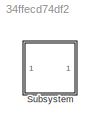
MODEL slx_34ffecd74df2
KIND model
CONFIG AbsTol = auto
CONFIG EnableMultiTasking = off
CONFIG FixedStep = auto
CONFIG MaxStep = auto
CONFIG MinStep = auto
CONFIG RelTol = 1e-3
CONFIG SampleTimeConstraint = Unconstrained
CONFIG SolverName = VariableStepAuto
CONFIG StartTime = 0.0
CONFIG StopTime = 10.0
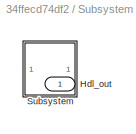
BLOCK [SubSystem] Subsystem
BLOCK [Outport] Subsystem/Hdl_out
  OutDataTypeStr = uint8
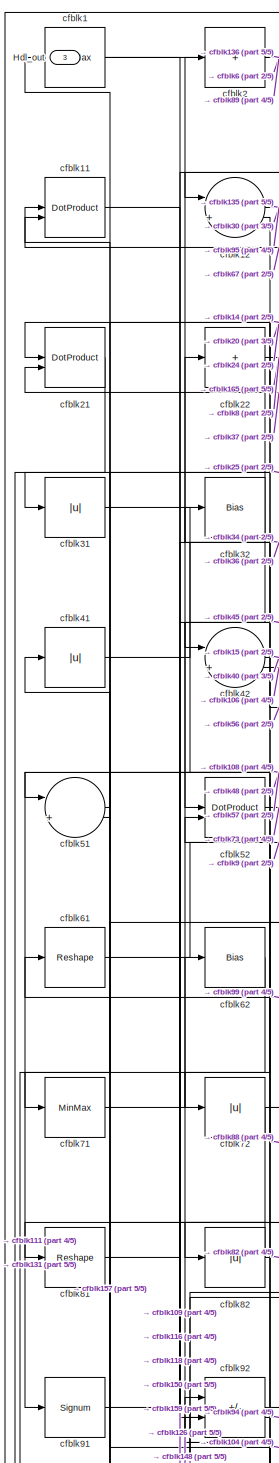
[diagram: Subsystem/Subsystem - part 1/5, top left region]
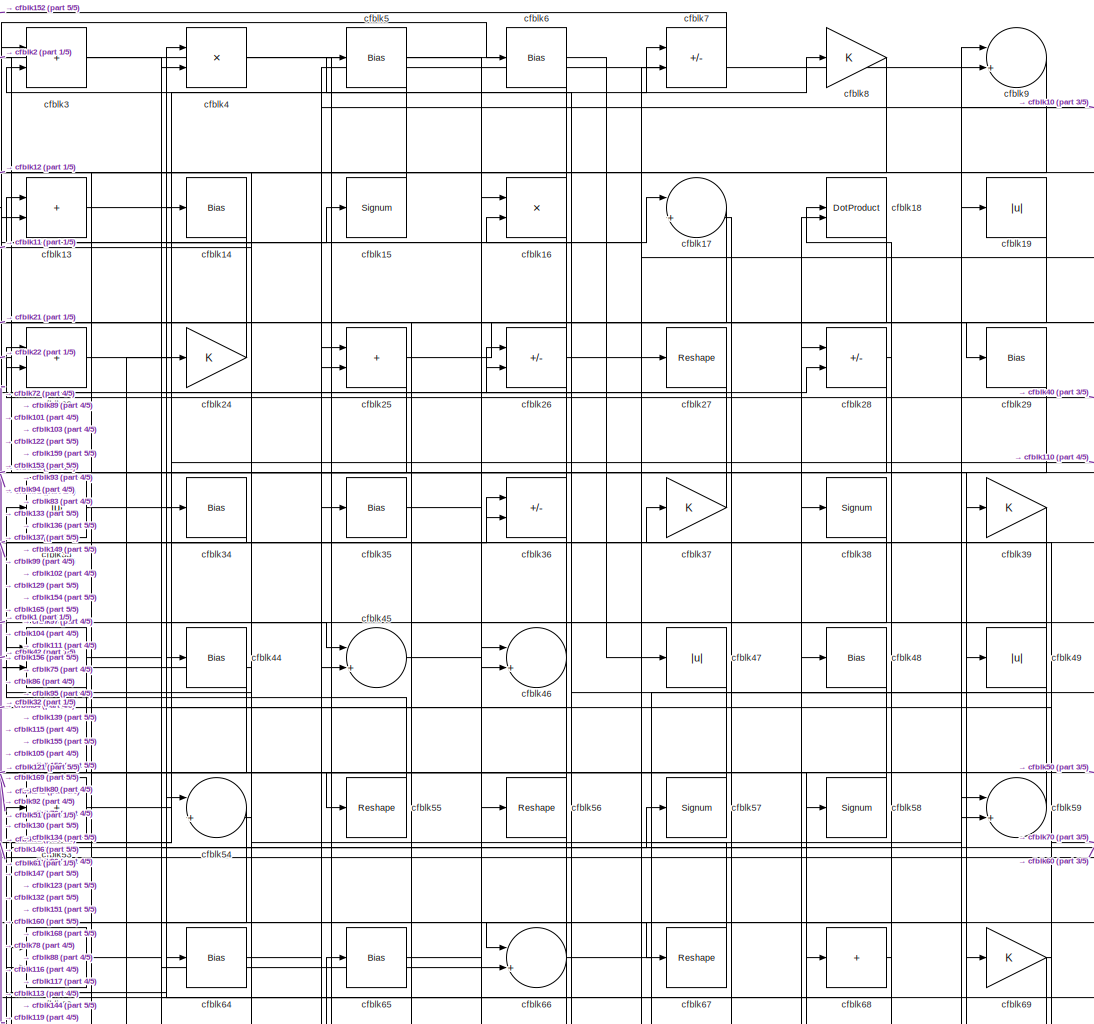
[diagram: Subsystem/Subsystem - part 2/5, top center region]
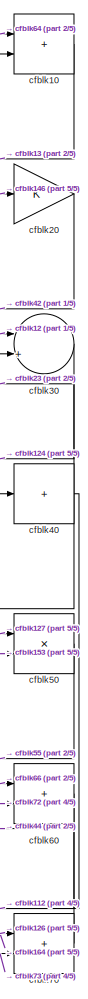
[diagram: Subsystem/Subsystem - part 3/5, top right region]
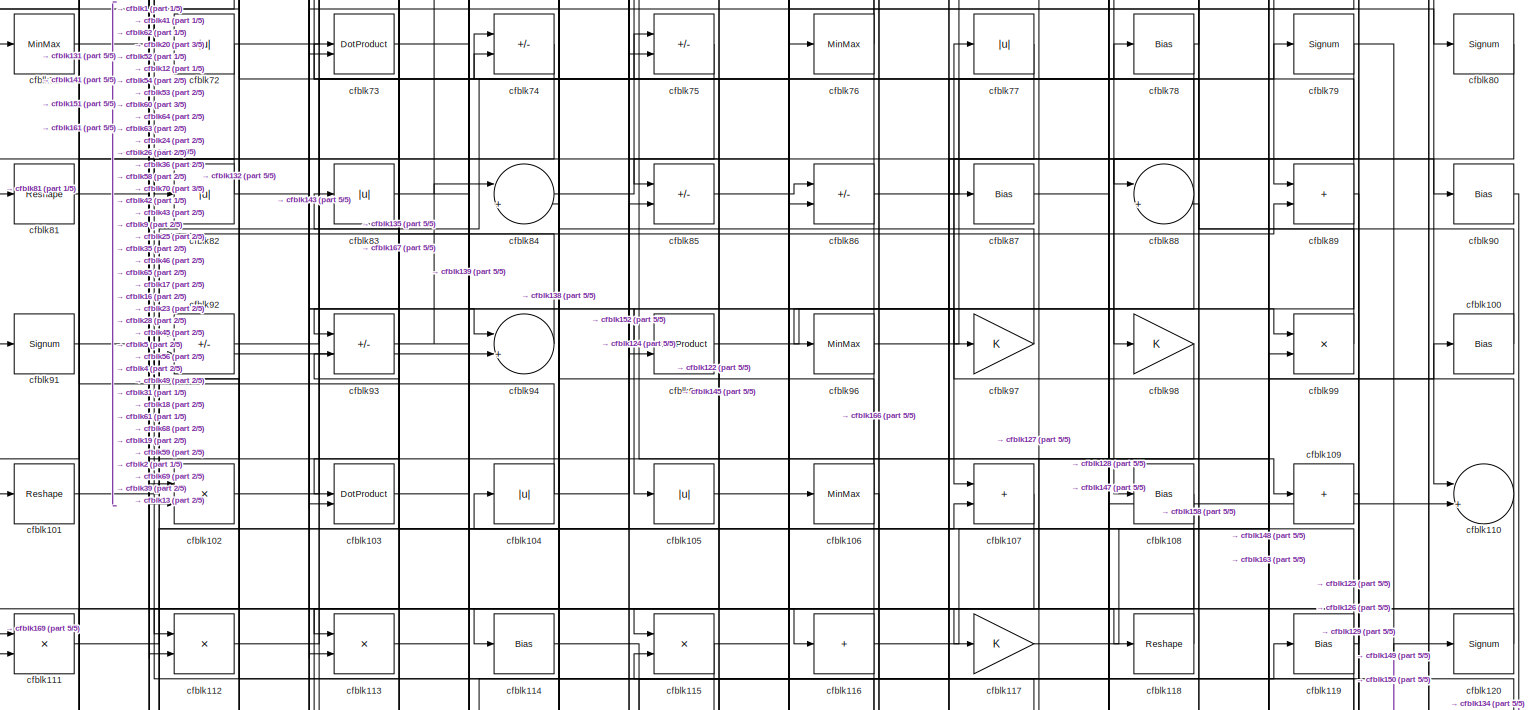
[diagram: Subsystem/Subsystem - part 4/5, full width, middle band]
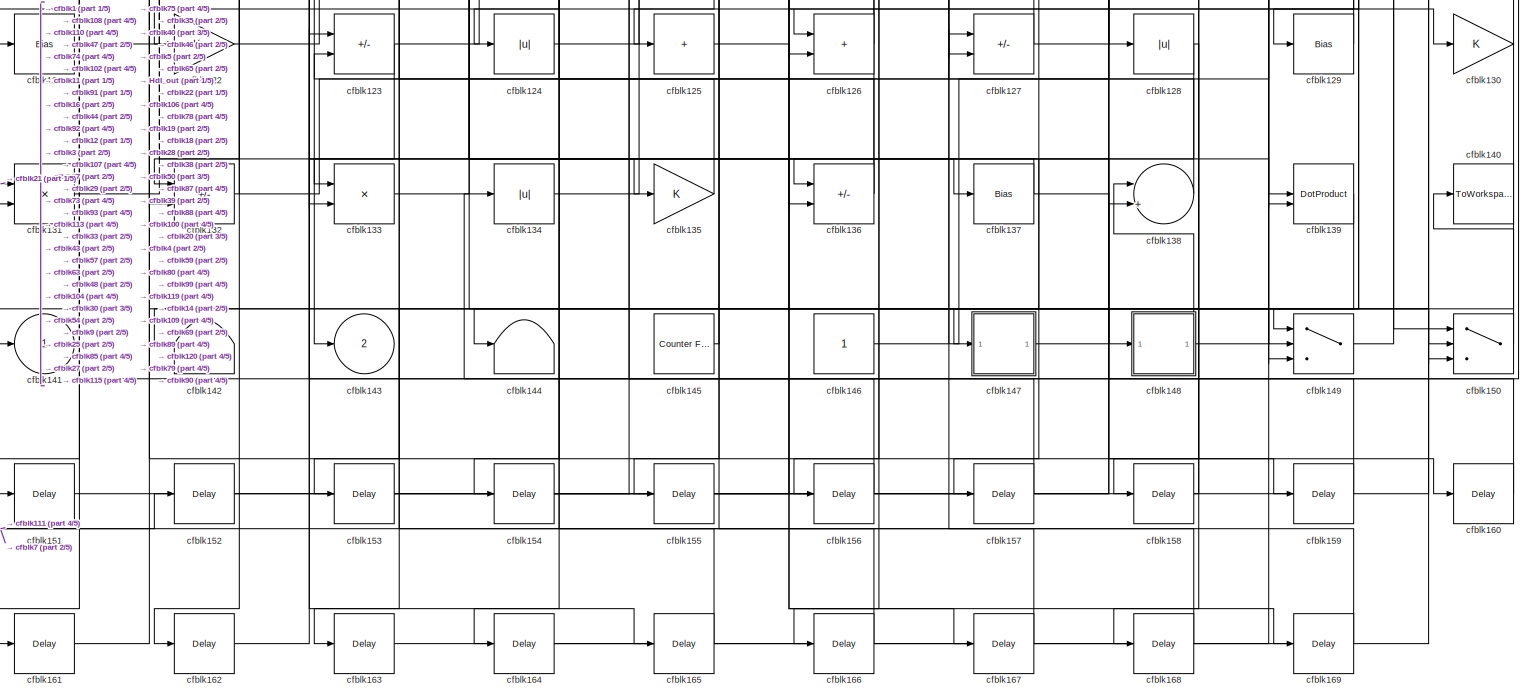
[diagram: Subsystem/Subsystem - part 5/5, full width, bottom band]
BLOCK [SubSystem] Subsystem/Subsystem
BLOCK [Outport] Subsystem/Subsystem/Hdl_out
  OutDataTypeStr = uint8
  Port = 3
BLOCK [MinMax] Subsystem/Subsystem/cfblk1
  OutDataTypeStr = uint8
BLOCK [Sum] Subsystem/Subsystem/cfblk10
  IconShape = rectangular
  OutDataTypeStr = uint8
BLOCK [Bias] Subsystem/Subsystem/cfblk100
  Bias = 0.0
  SaturateOnIntegerOverflow = off
BLOCK [Reshape] Subsystem/Subsystem/cfblk101
BLOCK [Product] Subsystem/Subsystem/cfblk102
  Inputs = */
  OutDataTypeStr = uint8
  RndMeth = Zero
  SaturateOnIntegerOverflow = on
BLOCK [DotProduct] Subsystem/Subsystem/cfblk103
  OutDataTypeStr = uint8
BLOCK [Abs] Subsystem/Subsystem/cfblk104
  OutDataTypeStr = uint8
  SaturateOnIntegerOverflow = off
BLOCK [Abs] Subsystem/Subsystem/cfblk105
  OutDataTypeStr = uint8
  SaturateOnIntegerOverflow = off
BLOCK [MinMax] Subsystem/Subsystem/cfblk106
  OutDataTypeStr = uint8
BLOCK [Sum] Subsystem/Subsystem/cfblk107
  IconShape = rectangular
  OutDataTypeStr = uint8
BLOCK [Bias] Subsystem/Subsystem/cfblk108
  Bias = 0.0
  SaturateOnIntegerOverflow = off
BLOCK [Sum] Subsystem/Subsystem/cfblk109
  IconShape = rectangular
  Inputs = +
  OutDataTypeStr = uint8
BLOCK [DotProduct] Subsystem/Subsystem/cfblk11
  OutDataTypeStr = uint8
BLOCK [Sum] Subsystem/Subsystem/cfblk110
  Inputs = |++
  OutDataTypeStr = uint8
BLOCK [Product] Subsystem/Subsystem/cfblk111
  Inputs = */
  OutDataTypeStr = uint8
  RndMeth = Zero
  SaturateOnIntegerOverflow = on
BLOCK [Product] Subsystem/Subsystem/cfblk112
  Inputs = */
  OutDataTypeStr = uint8
  RndMeth = Zero
  SaturateOnIntegerOverflow = on
BLOCK [Product] Subsystem/Subsystem/cfblk113
  Inputs = */
  OutDataTypeStr = uint8
  RndMeth = Zero
  SaturateOnIntegerOverflow = on
BLOCK [Bias] Subsystem/Subsystem/cfblk114
  Bias = 0.0
  SaturateOnIntegerOverflow = off
BLOCK [Product] Subsystem/Subsystem/cfblk115
  Inputs = */
  OutDataTypeStr = uint8
  RndMeth = Zero
  SaturateOnIntegerOverflow = on
BLOCK [Sum] Subsystem/Subsystem/cfblk116
  IconShape = rectangular
  Inputs = +
  OutDataTypeStr = uint8
BLOCK [Gain] Subsystem/Subsystem/cfblk117
  OutDataTypeStr = uint8
BLOCK [Reshape] Subsystem/Subsystem/cfblk118
BLOCK [Bias] Subsystem/Subsystem/cfblk119
  Bias = 0.0
  SaturateOnIntegerOverflow = off
BLOCK [Sum] Subsystem/Subsystem/cfblk12
  Inputs = |++
  OutDataTypeStr = uint8
BLOCK [Signum] Subsystem/Subsystem/cfblk120
BLOCK [Bias] Subsystem/Subsystem/cfblk121
  Bias = 0.0
  SaturateOnIntegerOverflow = off
BLOCK [Gain] Subsystem/Subsystem/cfblk122
  OutDataTypeStr = uint8
BLOCK [Sum] Subsystem/Subsystem/cfblk123
  IconShape = rectangular
  Inputs = +-
  OutDataTypeStr = uint8
BLOCK [Abs] Subsystem/Subsystem/cfblk124
  OutDataTypeStr = uint8
  SaturateOnIntegerOverflow = off
BLOCK [Sum] Subsystem/Subsystem/cfblk125
  IconShape = rectangular
  Inputs = +
  OutDataTypeStr = uint8
BLOCK [Sum] Subsystem/Subsystem/cfblk126
  IconShape = rectangular
  OutDataTypeStr = uint8
BLOCK [Sum] Subsystem/Subsystem/cfblk127
  IconShape = rectangular
  Inputs = +-
  OutDataTypeStr = uint8
BLOCK [Abs] Subsystem/Subsystem/cfblk128
  OutDataTypeStr = uint8
  SaturateOnIntegerOverflow = off
BLOCK [Bias] Subsystem/Subsystem/cfblk129
  Bias = 0.0
  SaturateOnIntegerOverflow = off
BLOCK [Sum] Subsystem/Subsystem/cfblk13
  IconShape = rectangular
  OutDataTypeStr = uint8
BLOCK [Gain] Subsystem/Subsystem/cfblk130
  OutDataTypeStr = uint8
BLOCK [Product] Subsystem/Subsystem/cfblk131
  Inputs = */
  OutDataTypeStr = uint8
  RndMeth = Zero
  SaturateOnIntegerOverflow = on
BLOCK [Sum] Subsystem/Subsystem/cfblk132
  IconShape = rectangular
  Inputs = +-
  OutDataTypeStr = uint8
BLOCK [Product] Subsystem/Subsystem/cfblk133
  Inputs = */
  OutDataTypeStr = uint8
  RndMeth = Zero
  SaturateOnIntegerOverflow = on
BLOCK [Abs] Subsystem/Subsystem/cfblk134
  OutDataTypeStr = uint8
  SaturateOnIntegerOverflow = off
BLOCK [Gain] Subsystem/Subsystem/cfblk135
  OutDataTypeStr = uint8
BLOCK [Sum] Subsystem/Subsystem/cfblk136
  IconShape = rectangular
  Inputs = +-
  OutDataTypeStr = uint8
BLOCK [Bias] Subsystem/Subsystem/cfblk137
  Bias = 0.0
  SaturateOnIntegerOverflow = off
BLOCK [Sum] Subsystem/Subsystem/cfblk138
  Inputs = |++
  OutDataTypeStr = uint8
BLOCK [DotProduct] Subsystem/Subsystem/cfblk139
  OutDataTypeStr = uint8
BLOCK [Bias] Subsystem/Subsystem/cfblk14
  Bias = 0.0
  SaturateOnIntegerOverflow = off
BLOCK [ToWorkspace] Subsystem/Subsystem/cfblk140
  MaxDataPoints = inf
  SampleTime = -1
  SaveFormat = Timeseries
  VariableName = simout
BLOCK [Outport] Subsystem/Subsystem/cfblk141
  OutDataTypeStr = uint8
  VectorParamsAs1DForOutWhenUnconnected = off
BLOCK [Terminator] Subsystem/Subsystem/cfblk142
BLOCK [Outport] Subsystem/Subsystem/cfblk143
  OutDataTypeStr = uint8
  Port = 2
  VectorParamsAs1DForOutWhenUnconnected = off
BLOCK [Terminator] Subsystem/Subsystem/cfblk144
BLOCK [Reference] Subsystem/Subsystem/cfblk145  REF=hdlsllib/Sources/Counter
Free-Running
  SourceBlock = hdlsllib/Sources/Counter\nFree-Running
  SourceType = Counter Free-Running
BLOCK [Constant] Subsystem/Subsystem/cfblk146
  OutDataTypeStr = uint8
  SampleTime = -1
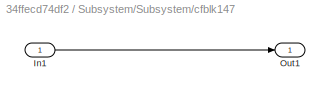
BLOCK [SubSystem] Subsystem/Subsystem/cfblk147
  LibrarySourceBlock = hdlsllib/Ports &\nSubsystems/Subsystem
BLOCK [Inport] Subsystem/Subsystem/cfblk147/In1
BLOCK [Outport] Subsystem/Subsystem/cfblk147/Out1
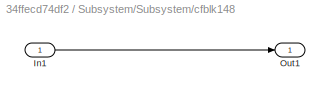
BLOCK [SubSystem] Subsystem/Subsystem/cfblk148
  LibrarySourceBlock = hdlsllib/Ports &\nSubsystems/Subsystem
BLOCK [Inport] Subsystem/Subsystem/cfblk148/In1
BLOCK [Outport] Subsystem/Subsystem/cfblk148/Out1
BLOCK [Switch] Subsystem/Subsystem/cfblk149
  InputSameDT = off
  OutDataTypeStr = uint8
  SaturateOnIntegerOverflow = off
BLOCK [Signum] Subsystem/Subsystem/cfblk15
BLOCK [Switch] Subsystem/Subsystem/cfblk150
  InputSameDT = off
  OutDataTypeStr = uint8
  SaturateOnIntegerOverflow = off
BLOCK [Delay] Subsystem/Subsystem/cfblk151
  InputPortMap = u0
  SampleTime = 1
BLOCK [Delay] Subsystem/Subsystem/cfblk152
  InputPortMap = u0
  SampleTime = 1
BLOCK [Delay] Subsystem/Subsystem/cfblk153
  InputPortMap = u0
  SampleTime = 1
BLOCK [Delay] Subsystem/Subsystem/cfblk154
  InputPortMap = u0
  SampleTime = 1
BLOCK [Delay] Subsystem/Subsystem/cfblk155
  InputPortMap = u0
  SampleTime = 1
BLOCK [Delay] Subsystem/Subsystem/cfblk156
  InputPortMap = u0
  SampleTime = 1
BLOCK [Delay] Subsystem/Subsystem/cfblk157
  InputPortMap = u0
  SampleTime = 1
BLOCK [Delay] Subsystem/Subsystem/cfblk158
  InputPortMap = u0
  SampleTime = 1
BLOCK [Delay] Subsystem/Subsystem/cfblk159
  InputPortMap = u0
  SampleTime = 1
BLOCK [Product] Subsystem/Subsystem/cfblk16
  Inputs = */
  OutDataTypeStr = uint8
  RndMeth = Zero
  SaturateOnIntegerOverflow = on
BLOCK [Delay] Subsystem/Subsystem/cfblk160
  InputPortMap = u0
  SampleTime = 1
BLOCK [Delay] Subsystem/Subsystem/cfblk161
  InputPortMap = u0
  SampleTime = 1
BLOCK [Delay] Subsystem/Subsystem/cfblk162
  InputPortMap = u0
  SampleTime = 1
BLOCK [Delay] Subsystem/Subsystem/cfblk163
  InputPortMap = u0
  SampleTime = 1
BLOCK [Delay] Subsystem/Subsystem/cfblk164
  InputPortMap = u0
  SampleTime = 1
BLOCK [Delay] Subsystem/Subsystem/cfblk165
  InputPortMap = u0
  SampleTime = 1
BLOCK [Delay] Subsystem/Subsystem/cfblk166
  InputPortMap = u0
  SampleTime = 1
BLOCK [Delay] Subsystem/Subsystem/cfblk167
  InputPortMap = u0
  SampleTime = 1
BLOCK [Delay] Subsystem/Subsystem/cfblk168
  InputPortMap = u0
  SampleTime = 1
BLOCK [Delay] Subsystem/Subsystem/cfblk169
  InputPortMap = u0
  SampleTime = 1
BLOCK [Sum] Subsystem/Subsystem/cfblk17
  Inputs = |++
  OutDataTypeStr = uint8
BLOCK [DotProduct] Subsystem/Subsystem/cfblk18
  OutDataTypeStr = uint8
BLOCK [Abs] Subsystem/Subsystem/cfblk19
  OutDataTypeStr = uint8
  SaturateOnIntegerOverflow = off
BLOCK [Sum] Subsystem/Subsystem/cfblk2
  IconShape = rectangular
  Inputs = +
  OutDataTypeStr = uint8
BLOCK [Gain] Subsystem/Subsystem/cfblk20
  OutDataTypeStr = uint8
BLOCK [DotProduct] Subsystem/Subsystem/cfblk21
  OutDataTypeStr = uint8
BLOCK [Sum] Subsystem/Subsystem/cfblk22
  IconShape = rectangular
  Inputs = +
  OutDataTypeStr = uint8
BLOCK [Sum] Subsystem/Subsystem/cfblk23
  IconShape = rectangular
  OutDataTypeStr = uint8
BLOCK [Gain] Subsystem/Subsystem/cfblk24
  OutDataTypeStr = uint8
BLOCK [Sum] Subsystem/Subsystem/cfblk25
  IconShape = rectangular
  OutDataTypeStr = uint8
BLOCK [Sum] Subsystem/Subsystem/cfblk26
  IconShape = rectangular
  Inputs = +-
  OutDataTypeStr = uint8
BLOCK [Reshape] Subsystem/Subsystem/cfblk27
BLOCK [Sum] Subsystem/Subsystem/cfblk28
  IconShape = rectangular
  Inputs = +-
  OutDataTypeStr = uint8
BLOCK [Bias] Subsystem/Subsystem/cfblk29
  Bias = 0.0
  SaturateOnIntegerOverflow = off
BLOCK [Sum] Subsystem/Subsystem/cfblk3
  IconShape = rectangular
  OutDataTypeStr = uint8
BLOCK [Sum] Subsystem/Subsystem/cfblk30
  Inputs = |++
  OutDataTypeStr = uint8
BLOCK [Abs] Subsystem/Subsystem/cfblk31
  OutDataTypeStr = uint8
  SaturateOnIntegerOverflow = off
BLOCK [Bias] Subsystem/Subsystem/cfblk32
  Bias = 0.0
  SaturateOnIntegerOverflow = off
BLOCK [Abs] Subsystem/Subsystem/cfblk33
  OutDataTypeStr = uint8
  SaturateOnIntegerOverflow = off
BLOCK [Bias] Subsystem/Subsystem/cfblk34
  Bias = 0.0
  SaturateOnIntegerOverflow = off
BLOCK [Bias] Subsystem/Subsystem/cfblk35
  Bias = 0.0
  SaturateOnIntegerOverflow = off
BLOCK [Sum] Subsystem/Subsystem/cfblk36
  IconShape = rectangular
  Inputs = +-
  OutDataTypeStr = uint8
BLOCK [Gain] Subsystem/Subsystem/cfblk37
  OutDataTypeStr = uint8
BLOCK [Signum] Subsystem/Subsystem/cfblk38
BLOCK [Gain] Subsystem/Subsystem/cfblk39
  OutDataTypeStr = uint8
BLOCK [Product] Subsystem/Subsystem/cfblk4
  Inputs = */
  OutDataTypeStr = uint8
  RndMeth = Zero
  SaturateOnIntegerOverflow = on
BLOCK [Sum] Subsystem/Subsystem/cfblk40
  IconShape = rectangular
  Inputs = +
  OutDataTypeStr = uint8
BLOCK [Abs] Subsystem/Subsystem/cfblk41
  OutDataTypeStr = uint8
  SaturateOnIntegerOverflow = off
BLOCK [Sum] Subsystem/Subsystem/cfblk42
  Inputs = |++
  OutDataTypeStr = uint8
BLOCK [Sum] Subsystem/Subsystem/cfblk43
  IconShape = rectangular
  OutDataTypeStr = uint8
BLOCK [Bias] Subsystem/Subsystem/cfblk44
  Bias = 0.0
  SaturateOnIntegerOverflow = off
BLOCK [Sum] Subsystem/Subsystem/cfblk45
  Inputs = |++
  OutDataTypeStr = uint8
BLOCK [Sum] Subsystem/Subsystem/cfblk46
  Inputs = |++
  OutDataTypeStr = uint8
BLOCK [Abs] Subsystem/Subsystem/cfblk47
  OutDataTypeStr = uint8
  SaturateOnIntegerOverflow = off
BLOCK [Bias] Subsystem/Subsystem/cfblk48
  Bias = 0.0
  SaturateOnIntegerOverflow = off
BLOCK [Abs] Subsystem/Subsystem/cfblk49
  OutDataTypeStr = uint8
  SaturateOnIntegerOverflow = off
BLOCK [Bias] Subsystem/Subsystem/cfblk5
  Bias = 0.0
  SaturateOnIntegerOverflow = off
BLOCK [Product] Subsystem/Subsystem/cfblk50
  Inputs = */
  OutDataTypeStr = uint8
  RndMeth = Zero
  SaturateOnIntegerOverflow = on
BLOCK [Sum] Subsystem/Subsystem/cfblk51
  Inputs = |++
  OutDataTypeStr = uint8
BLOCK [DotProduct] Subsystem/Subsystem/cfblk52
  OutDataTypeStr = uint8
BLOCK [Sum] Subsystem/Subsystem/cfblk53
  IconShape = rectangular
  Inputs = +
  OutDataTypeStr = uint8
BLOCK [Sum] Subsystem/Subsystem/cfblk54
  Inputs = |++
  OutDataTypeStr = uint8
BLOCK [Reshape] Subsystem/Subsystem/cfblk55
BLOCK [Reshape] Subsystem/Subsystem/cfblk56
BLOCK [Signum] Subsystem/Subsystem/cfblk57
BLOCK [Signum] Subsystem/Subsystem/cfblk58
BLOCK [Sum] Subsystem/Subsystem/cfblk59
  Inputs = |++
  OutDataTypeStr = uint8
BLOCK [Bias] Subsystem/Subsystem/cfblk6
  Bias = 0.0
  SaturateOnIntegerOverflow = off
BLOCK [Sum] Subsystem/Subsystem/cfblk60
  IconShape = rectangular
  OutDataTypeStr = uint8
BLOCK [Reshape] Subsystem/Subsystem/cfblk61
BLOCK [Bias] Subsystem/Subsystem/cfblk62
  Bias = 0.0
  SaturateOnIntegerOverflow = off
BLOCK [Product] Subsystem/Subsystem/cfblk63
  Inputs = */
  OutDataTypeStr = uint8
  RndMeth = Zero
  SaturateOnIntegerOverflow = on
BLOCK [Bias] Subsystem/Subsystem/cfblk64
  Bias = 0.0
  SaturateOnIntegerOverflow = off
BLOCK [Bias] Subsystem/Subsystem/cfblk65
  Bias = 0.0
  SaturateOnIntegerOverflow = off
BLOCK [Sum] Subsystem/Subsystem/cfblk66
  Inputs = |++
  OutDataTypeStr = uint8
BLOCK [Reshape] Subsystem/Subsystem/cfblk67
BLOCK [Sum] Subsystem/Subsystem/cfblk68
  IconShape = rectangular
  Inputs = +
  OutDataTypeStr = uint8
BLOCK [Gain] Subsystem/Subsystem/cfblk69
  OutDataTypeStr = uint8
BLOCK [Sum] Subsystem/Subsystem/cfblk7
  IconShape = rectangular
  Inputs = +-
  OutDataTypeStr = uint8
BLOCK [Sum] Subsystem/Subsystem/cfblk70
  IconShape = rectangular
  OutDataTypeStr = uint8
BLOCK [MinMax] Subsystem/Subsystem/cfblk71
  OutDataTypeStr = uint8
BLOCK [Abs] Subsystem/Subsystem/cfblk72
  OutDataTypeStr = uint8
  SaturateOnIntegerOverflow = off
BLOCK [DotProduct] Subsystem/Subsystem/cfblk73
  OutDataTypeStr = uint8
BLOCK [Sum] Subsystem/Subsystem/cfblk74
  IconShape = rectangular
  Inputs = +-
  OutDataTypeStr = uint8
BLOCK [Sum] Subsystem/Subsystem/cfblk75
  IconShape = rectangular
  Inputs = +-
  OutDataTypeStr = uint8
BLOCK [MinMax] Subsystem/Subsystem/cfblk76
  OutDataTypeStr = uint8
BLOCK [Abs] Subsystem/Subsystem/cfblk77
  OutDataTypeStr = uint8
  SaturateOnIntegerOverflow = off
BLOCK [Bias] Subsystem/Subsystem/cfblk78
  Bias = 0.0
  SaturateOnIntegerOverflow = off
BLOCK [Signum] Subsystem/Subsystem/cfblk79
BLOCK [Gain] Subsystem/Subsystem/cfblk8
  OutDataTypeStr = uint8
BLOCK [Signum] Subsystem/Subsystem/cfblk80
BLOCK [Reshape] Subsystem/Subsystem/cfblk81
BLOCK [Abs] Subsystem/Subsystem/cfblk82
  OutDataTypeStr = uint8
  SaturateOnIntegerOverflow = off
BLOCK [Abs] Subsystem/Subsystem/cfblk83
  OutDataTypeStr = uint8
  SaturateOnIntegerOverflow = off
BLOCK [Sum] Subsystem/Subsystem/cfblk84
  Inputs = |++
  OutDataTypeStr = uint8
BLOCK [Sum] Subsystem/Subsystem/cfblk85
  IconShape = rectangular
  Inputs = +-
  OutDataTypeStr = uint8
BLOCK [Sum] Subsystem/Subsystem/cfblk86
  IconShape = rectangular
  Inputs = +-
  OutDataTypeStr = uint8
BLOCK [Bias] Subsystem/Subsystem/cfblk87
  Bias = 0.0
  SaturateOnIntegerOverflow = off
BLOCK [Sum] Subsystem/Subsystem/cfblk88
  Inputs = |++
  OutDataTypeStr = uint8
BLOCK [Sum] Subsystem/Subsystem/cfblk89
  IconShape = rectangular
  OutDataTypeStr = uint8
BLOCK [Sum] Subsystem/Subsystem/cfblk9
  Inputs = |++
  OutDataTypeStr = uint8
BLOCK [Bias] Subsystem/Subsystem/cfblk90
  Bias = 0.0
  SaturateOnIntegerOverflow = off
BLOCK [Signum] Subsystem/Subsystem/cfblk91
BLOCK [Sum] Subsystem/Subsystem/cfblk92
  IconShape = rectangular
  Inputs = +-
  OutDataTypeStr = uint8
BLOCK [Sum] Subsystem/Subsystem/cfblk93
  IconShape = rectangular
  Inputs = +-
  OutDataTypeStr = uint8
BLOCK [Sum] Subsystem/Subsystem/cfblk94
  Inputs = |++
  OutDataTypeStr = uint8
BLOCK [DotProduct] Subsystem/Subsystem/cfblk95
  OutDataTypeStr = uint8
BLOCK [MinMax] Subsystem/Subsystem/cfblk96
  OutDataTypeStr = uint8
BLOCK [Gain] Subsystem/Subsystem/cfblk97
  OutDataTypeStr = uint8
BLOCK [Gain] Subsystem/Subsystem/cfblk98
  OutDataTypeStr = uint8
BLOCK [Product] Subsystem/Subsystem/cfblk99
  Inputs = */
  OutDataTypeStr = uint8
  RndMeth = Zero
  SaturateOnIntegerOverflow = on
LINE Subsystem/Subsystem/cfblk100:1 -> Subsystem/Subsystem/cfblk74:1
LINE Subsystem/Subsystem/cfblk101:1 -> Subsystem/Subsystem/cfblk25:2
LINE Subsystem/Subsystem/cfblk102:1 -> Subsystem/Subsystem/cfblk17:1
LINE Subsystem/Subsystem/cfblk103:1 -> Subsystem/Subsystem/cfblk58:1
NET Subsystem/Subsystem/cfblk104:1 -> Subsystem/Subsystem/cfblk41:1, Subsystem/Subsystem/cfblk84:2, Subsystem/Subsystem/cfblk9:2
LINE Subsystem/Subsystem/cfblk105:1 -> Subsystem/Subsystem/cfblk16:1
NET Subsystem/Subsystem/cfblk106:1 -> Subsystem/Subsystem/cfblk166:1, Subsystem/Subsystem/cfblk42:2
LINE Subsystem/Subsystem/cfblk107:1 -> Subsystem/Subsystem/cfblk143:1
LINE Subsystem/Subsystem/cfblk108:1 -> Subsystem/Subsystem/cfblk161:1
LINE Subsystem/Subsystem/cfblk109:1 -> Subsystem/Subsystem/cfblk149:1
LINE Subsystem/Subsystem/cfblk10:1 -> Subsystem/Subsystem/cfblk13:2
NET Subsystem/Subsystem/cfblk110:1 -> Subsystem/Subsystem/cfblk131:2, Subsystem/Subsystem/cfblk151:1, Subsystem/Subsystem/cfblk77:1
LINE Subsystem/Subsystem/cfblk111:1 -> Subsystem/Subsystem/cfblk35:1
LINE Subsystem/Subsystem/cfblk112:1 -> Subsystem/Subsystem/cfblk74:2
NET Subsystem/Subsystem/cfblk113:1 -> Subsystem/Subsystem/cfblk139:2, Subsystem/Subsystem/cfblk36:2
LINE Subsystem/Subsystem/cfblk114:1 -> Subsystem/Subsystem/cfblk119:1
NET Subsystem/Subsystem/cfblk115:1 -> Subsystem/Subsystem/cfblk122:1, Subsystem/Subsystem/cfblk28:2
LINE Subsystem/Subsystem/cfblk116:1 -> Subsystem/Subsystem/cfblk59:2
LINE Subsystem/Subsystem/cfblk117:1 -> Subsystem/Subsystem/cfblk19:1
LINE Subsystem/Subsystem/cfblk118:1 -> Subsystem/Subsystem/cfblk83:1
NET Subsystem/Subsystem/cfblk119:1 -> Subsystem/Subsystem/cfblk125:1, Subsystem/Subsystem/cfblk126:1, Subsystem/Subsystem/cfblk23:1, Subsystem/Subsystem/cfblk39:1
NET Subsystem/Subsystem/cfblk11:1 -> Subsystem/Subsystem/cfblk150:3, Subsystem/Subsystem/cfblk159:1
LINE Subsystem/Subsystem/cfblk120:1 -> Subsystem/Subsystem/cfblk114:1
LINE Subsystem/Subsystem/cfblk121:1 -> Subsystem/Subsystem/cfblk89:2
LINE Subsystem/Subsystem/cfblk122:1 -> Subsystem/Subsystem/cfblk37:1
NET Subsystem/Subsystem/cfblk123:1 -> Subsystem/Subsystem/cfblk133:2, Subsystem/Subsystem/cfblk48:1
LINE Subsystem/Subsystem/cfblk124:1 -> Subsystem/Subsystem/cfblk106:1
LINE Subsystem/Subsystem/cfblk125:1 -> Subsystem/Subsystem/cfblk167:1
LINE Subsystem/Subsystem/cfblk126:1 -> Subsystem/Subsystem/cfblk22:1
NET Subsystem/Subsystem/cfblk127:1 -> Subsystem/Subsystem/cfblk50:1, Subsystem/Subsystem/cfblk92:1
NET Subsystem/Subsystem/cfblk128:1 -> Subsystem/Subsystem/cfblk156:1, Subsystem/Subsystem/cfblk157:1, Subsystem/Subsystem/cfblk158:1
LINE Subsystem/Subsystem/cfblk129:1 -> Subsystem/Subsystem/cfblk14:1
NET Subsystem/Subsystem/cfblk12:1 -> Subsystem/Subsystem/cfblk135:1, Subsystem/Subsystem/cfblk30:1, Subsystem/Subsystem/cfblk95:1
NET Subsystem/Subsystem/cfblk130:1 -> Subsystem/Subsystem/cfblk163:1, Subsystem/Subsystem/cfblk16:2
LINE Subsystem/Subsystem/cfblk131:1 -> Subsystem/Subsystem/cfblk107:2
NET Subsystem/Subsystem/cfblk132:1 -> Subsystem/Subsystem/cfblk38:1, Subsystem/Subsystem/cfblk87:1, Subsystem/Subsystem/cfblk92:2
LINE Subsystem/Subsystem/cfblk133:1 -> Subsystem/Subsystem/cfblk57:1
LINE Subsystem/Subsystem/cfblk134:1 -> Subsystem/Subsystem/cfblk27:1
LINE Subsystem/Subsystem/cfblk135:1 -> Subsystem/Subsystem/cfblk73:1
NET Subsystem/Subsystem/cfblk136:1 -> Subsystem/Subsystem/Hdl_out:1, Subsystem/Subsystem/cfblk123:2
NET Subsystem/Subsystem/cfblk137:1 -> Subsystem/Subsystem/cfblk133:1, Subsystem/Subsystem/cfblk160:1
LINE Subsystem/Subsystem/cfblk138:1 -> Subsystem/Subsystem/cfblk104:1
LINE Subsystem/Subsystem/cfblk139:1 -> Subsystem/Subsystem/cfblk162:1
LINE Subsystem/Subsystem/cfblk13:1 -> Subsystem/Subsystem/cfblk110:1
LINE Subsystem/Subsystem/cfblk145:1 -> Subsystem/Subsystem/cfblk75:1
NET Subsystem/Subsystem/cfblk146:1 -> Subsystem/Subsystem/cfblk20:1, Subsystem/Subsystem/cfblk59:1
LINE Subsystem/Subsystem/cfblk147/In1:1 -> Subsystem/Subsystem/cfblk147/Out1:1
LINE Subsystem/Subsystem/cfblk147:1 -> Subsystem/Subsystem/cfblk110:2
LINE Subsystem/Subsystem/cfblk148/In1:1 -> Subsystem/Subsystem/cfblk148/Out1:1
NET Subsystem/Subsystem/cfblk148:1 -> Subsystem/Subsystem/cfblk100:1, Subsystem/Subsystem/cfblk138:1
LINE Subsystem/Subsystem/cfblk149:1 -> Subsystem/Subsystem/cfblk120:1
LINE Subsystem/Subsystem/cfblk14:1 -> Subsystem/Subsystem/cfblk51:2
LINE Subsystem/Subsystem/cfblk150:1 -> Subsystem/Subsystem/cfblk140:1
LINE Subsystem/Subsystem/cfblk151:1 -> Subsystem/Subsystem/cfblk18:2
LINE Subsystem/Subsystem/cfblk152:1 -> Subsystem/Subsystem/cfblk85:2
LINE Subsystem/Subsystem/cfblk153:1 -> Subsystem/Subsystem/cfblk50:2
LINE Subsystem/Subsystem/cfblk154:1 -> Subsystem/Subsystem/cfblk46:1
LINE Subsystem/Subsystem/cfblk155:1 -> Subsystem/Subsystem/cfblk138:2
LINE Subsystem/Subsystem/cfblk156:1 -> Subsystem/Subsystem/cfblk25:1
LINE Subsystem/Subsystem/cfblk157:1 -> Subsystem/Subsystem/cfblk1:1
LINE Subsystem/Subsystem/cfblk158:1 -> Subsystem/Subsystem/cfblk88:2
LINE Subsystem/Subsystem/cfblk159:1 -> Subsystem/Subsystem/cfblk3:1
LINE Subsystem/Subsystem/cfblk15:1 -> Subsystem/Subsystem/cfblk5:1
LINE Subsystem/Subsystem/cfblk160:1 -> Subsystem/Subsystem/cfblk28:1
LINE Subsystem/Subsystem/cfblk161:1 -> Subsystem/Subsystem/cfblk102:1
LINE Subsystem/Subsystem/cfblk162:1 -> Subsystem/Subsystem/cfblk123:1
LINE Subsystem/Subsystem/cfblk163:1 -> Subsystem/Subsystem/cfblk99:2
LINE Subsystem/Subsystem/cfblk164:1 -> Subsystem/Subsystem/cfblk30:2
LINE Subsystem/Subsystem/cfblk165:1 -> Subsystem/Subsystem/cfblk54:2
LINE Subsystem/Subsystem/cfblk166:1 -> Subsystem/Subsystem/cfblk115:2
LINE Subsystem/Subsystem/cfblk167:1 -> Subsystem/Subsystem/cfblk93:2
LINE Subsystem/Subsystem/cfblk168:1 -> Subsystem/Subsystem/cfblk127:1
LINE Subsystem/Subsystem/cfblk169:1 -> Subsystem/Subsystem/cfblk111:1
LINE Subsystem/Subsystem/cfblk16:1 -> Subsystem/Subsystem/cfblk132:1
LINE Subsystem/Subsystem/cfblk17:1 -> Subsystem/Subsystem/cfblk115:1
LINE Subsystem/Subsystem/cfblk18:1 -> Subsystem/Subsystem/cfblk66:1
LINE Subsystem/Subsystem/cfblk19:1 -> Subsystem/Subsystem/cfblk147:1
NET Subsystem/Subsystem/cfblk1:1 -> Subsystem/Subsystem/cfblk116:1, Subsystem/Subsystem/cfblk118:1, Subsystem/Subsystem/cfblk45:2
NET Subsystem/Subsystem/cfblk20:1 -> Subsystem/Subsystem/cfblk42:1, Subsystem/Subsystem/cfblk72:1
LINE Subsystem/Subsystem/cfblk21:1 -> Subsystem/Subsystem/cfblk131:1
NET Subsystem/Subsystem/cfblk22:1 -> Subsystem/Subsystem/cfblk165:1, Subsystem/Subsystem/cfblk8:1
NET Subsystem/Subsystem/cfblk23:1 -> Subsystem/Subsystem/cfblk66:2, Subsystem/Subsystem/cfblk76:1
LINE Subsystem/Subsystem/cfblk24:1 -> Subsystem/Subsystem/cfblk21:1
NET Subsystem/Subsystem/cfblk25:1 -> Subsystem/Subsystem/cfblk29:1, Subsystem/Subsystem/cfblk71:1
LINE Subsystem/Subsystem/cfblk26:1 -> Subsystem/Subsystem/cfblk69:1
NET Subsystem/Subsystem/cfblk27:1 -> Subsystem/Subsystem/cfblk136:1, Subsystem/Subsystem/cfblk63:1
NET Subsystem/Subsystem/cfblk28:1 -> Subsystem/Subsystem/cfblk68:1, Subsystem/Subsystem/cfblk95:2
LINE Subsystem/Subsystem/cfblk29:1 -> Subsystem/Subsystem/cfblk153:1
NET Subsystem/Subsystem/cfblk2:1 -> Subsystem/Subsystem/cfblk6:1, Subsystem/Subsystem/cfblk89:1
LINE Subsystem/Subsystem/cfblk30:1 -> Subsystem/Subsystem/cfblk124:1
LINE Subsystem/Subsystem/cfblk31:1 -> Subsystem/Subsystem/cfblk108:1
NET Subsystem/Subsystem/cfblk32:1 -> Subsystem/Subsystem/cfblk11:2, Subsystem/Subsystem/cfblk52:1
NET Subsystem/Subsystem/cfblk33:1 -> Subsystem/Subsystem/cfblk136:2, Subsystem/Subsystem/cfblk7:1
LINE Subsystem/Subsystem/cfblk34:1 -> Subsystem/Subsystem/cfblk2:1
NET Subsystem/Subsystem/cfblk35:1 -> Subsystem/Subsystem/cfblk150:2, Subsystem/Subsystem/cfblk46:2
LINE Subsystem/Subsystem/cfblk36:1 -> Subsystem/Subsystem/cfblk31:1
LINE Subsystem/Subsystem/cfblk37:1 -> Subsystem/Subsystem/cfblk12:2
LINE Subsystem/Subsystem/cfblk38:1 -> Subsystem/Subsystem/cfblk155:1
LINE Subsystem/Subsystem/cfblk39:1 -> Subsystem/Subsystem/cfblk168:1
NET Subsystem/Subsystem/cfblk3:1 -> Subsystem/Subsystem/cfblk45:1, Subsystem/Subsystem/cfblk67:1
NET Subsystem/Subsystem/cfblk40:1 -> Subsystem/Subsystem/cfblk126:2, Subsystem/Subsystem/cfblk164:1, Subsystem/Subsystem/cfblk23:2, Subsystem/Subsystem/cfblk70:1
NET Subsystem/Subsystem/cfblk41:1 -> Subsystem/Subsystem/cfblk34:1, Subsystem/Subsystem/cfblk94:2
NET Subsystem/Subsystem/cfblk42:1 -> Subsystem/Subsystem/cfblk15:1, Subsystem/Subsystem/cfblk40:1
NET Subsystem/Subsystem/cfblk43:1 -> Subsystem/Subsystem/cfblk132:2, Subsystem/Subsystem/cfblk137:1
LINE Subsystem/Subsystem/cfblk44:1 -> Subsystem/Subsystem/cfblk142:1
LINE Subsystem/Subsystem/cfblk45:1 -> Subsystem/Subsystem/cfblk80:1
NET Subsystem/Subsystem/cfblk46:1 -> Subsystem/Subsystem/cfblk75:2, Subsystem/Subsystem/cfblk93:1
LINE Subsystem/Subsystem/cfblk47:1 -> Subsystem/Subsystem/cfblk121:1
LINE Subsystem/Subsystem/cfblk48:1 -> Subsystem/Subsystem/cfblk91:1
NET Subsystem/Subsystem/cfblk49:1 -> Subsystem/Subsystem/cfblk103:1, Subsystem/Subsystem/cfblk26:2, Subsystem/Subsystem/cfblk54:1
LINE Subsystem/Subsystem/cfblk4:1 -> Subsystem/Subsystem/cfblk139:1
LINE Subsystem/Subsystem/cfblk50:1 -> Subsystem/Subsystem/cfblk55:1
LINE Subsystem/Subsystem/cfblk51:1 -> Subsystem/Subsystem/cfblk21:2
LINE Subsystem/Subsystem/cfblk52:1 -> Subsystem/Subsystem/cfblk73:2
LINE Subsystem/Subsystem/cfblk53:1 -> Subsystem/Subsystem/cfblk7:2
NET Subsystem/Subsystem/cfblk54:1 -> Subsystem/Subsystem/cfblk101:1, Subsystem/Subsystem/cfblk103:2
LINE Subsystem/Subsystem/cfblk55:1 -> Subsystem/Subsystem/cfblk33:1
LINE Subsystem/Subsystem/cfblk56:1 -> Subsystem/Subsystem/cfblk32:1
LINE Subsystem/Subsystem/cfblk57:1 -> Subsystem/Subsystem/cfblk51:1
LINE Subsystem/Subsystem/cfblk58:1 -> Subsystem/Subsystem/cfblk17:2
LINE Subsystem/Subsystem/cfblk59:1 -> Subsystem/Subsystem/cfblk3:2
NET Subsystem/Subsystem/cfblk5:1 -> Subsystem/Subsystem/cfblk113:1, Subsystem/Subsystem/cfblk130:1
LINE Subsystem/Subsystem/cfblk60:1 -> Subsystem/Subsystem/cfblk112:1
LINE Subsystem/Subsystem/cfblk61:1 -> Subsystem/Subsystem/cfblk9:1
LINE Subsystem/Subsystem/cfblk62:1 -> Subsystem/Subsystem/cfblk111:2
NET Subsystem/Subsystem/cfblk63:1 -> Subsystem/Subsystem/cfblk149:2, Subsystem/Subsystem/cfblk99:1
NET Subsystem/Subsystem/cfblk64:1 -> Subsystem/Subsystem/cfblk10:1, Subsystem/Subsystem/cfblk86:2
LINE Subsystem/Subsystem/cfblk65:1 -> Subsystem/Subsystem/cfblk169:1
NET Subsystem/Subsystem/cfblk66:1 -> Subsystem/Subsystem/cfblk10:2, Subsystem/Subsystem/cfblk60:1
LINE Subsystem/Subsystem/cfblk67:1 -> Subsystem/Subsystem/cfblk11:1
LINE Subsystem/Subsystem/cfblk68:1 -> Subsystem/Subsystem/cfblk88:1
NET Subsystem/Subsystem/cfblk69:1 -> Subsystem/Subsystem/cfblk113:2, Subsystem/Subsystem/cfblk144:1
NET Subsystem/Subsystem/cfblk6:1 -> Subsystem/Subsystem/cfblk12:1, Subsystem/Subsystem/cfblk47:1
LINE Subsystem/Subsystem/cfblk70:1 -> Subsystem/Subsystem/cfblk44:1
LINE Subsystem/Subsystem/cfblk71:1 -> Subsystem/Subsystem/cfblk62:1
NET Subsystem/Subsystem/cfblk72:1 -> Subsystem/Subsystem/cfblk112:2, Subsystem/Subsystem/cfblk60:2, Subsystem/Subsystem/cfblk64:1
LINE Subsystem/Subsystem/cfblk73:1 -> Subsystem/Subsystem/cfblk70:2
LINE Subsystem/Subsystem/cfblk74:1 -> Subsystem/Subsystem/cfblk141:1
LINE Subsystem/Subsystem/cfblk75:1 -> Subsystem/Subsystem/cfblk82:1
LINE Subsystem/Subsystem/cfblk76:1 -> Subsystem/Subsystem/cfblk4:1
LINE Subsystem/Subsystem/cfblk77:1 -> Subsystem/Subsystem/cfblk107:1
NET Subsystem/Subsystem/cfblk78:1 -> Subsystem/Subsystem/cfblk127:2, Subsystem/Subsystem/cfblk18:1
NET Subsystem/Subsystem/cfblk79:1 -> Subsystem/Subsystem/cfblk150:1, Subsystem/Subsystem/cfblk98:1
LINE Subsystem/Subsystem/cfblk7:1 -> Subsystem/Subsystem/cfblk152:1
NET Subsystem/Subsystem/cfblk80:1 -> Subsystem/Subsystem/cfblk149:3, Subsystem/Subsystem/cfblk85:1
NET Subsystem/Subsystem/cfblk81:1 -> Subsystem/Subsystem/cfblk109:1, Subsystem/Subsystem/cfblk36:1
NET Subsystem/Subsystem/cfblk82:1 -> Subsystem/Subsystem/cfblk81:1, Subsystem/Subsystem/cfblk94:1
NET Subsystem/Subsystem/cfblk83:1 -> Subsystem/Subsystem/cfblk24:1, Subsystem/Subsystem/cfblk4:2
LINE Subsystem/Subsystem/cfblk84:1 -> Subsystem/Subsystem/cfblk65:1
LINE Subsystem/Subsystem/cfblk85:1 -> Subsystem/Subsystem/cfblk86:1
NET Subsystem/Subsystem/cfblk86:1 -> Subsystem/Subsystem/cfblk78:1, Subsystem/Subsystem/cfblk90:1
LINE Subsystem/Subsystem/cfblk87:1 -> Subsystem/Subsystem/cfblk128:1
NET Subsystem/Subsystem/cfblk88:1 -> Subsystem/Subsystem/cfblk105:1, Subsystem/Subsystem/cfblk52:2
NET Subsystem/Subsystem/cfblk89:1 -> Subsystem/Subsystem/cfblk129:1, Subsystem/Subsystem/cfblk53:1, Subsystem/Subsystem/cfblk96:1
LINE Subsystem/Subsystem/cfblk8:1 -> Subsystem/Subsystem/cfblk43:2
LINE Subsystem/Subsystem/cfblk90:1 -> Subsystem/Subsystem/cfblk134:1
LINE Subsystem/Subsystem/cfblk91:1 -> Subsystem/Subsystem/cfblk148:1
LINE Subsystem/Subsystem/cfblk92:1 -> Subsystem/Subsystem/cfblk56:1
NET Subsystem/Subsystem/cfblk93:1 -> Subsystem/Subsystem/cfblk26:1, Subsystem/Subsystem/cfblk63:2, Subsystem/Subsystem/cfblk84:1
LINE Subsystem/Subsystem/cfblk94:1 -> Subsystem/Subsystem/cfblk13:1
LINE Subsystem/Subsystem/cfblk95:1 -> Subsystem/Subsystem/cfblk97:1
NET Subsystem/Subsystem/cfblk96:1 -> Subsystem/Subsystem/cfblk49:1, Subsystem/Subsystem/cfblk79:1
LINE Subsystem/Subsystem/cfblk97:1 -> Subsystem/Subsystem/cfblk43:1
LINE Subsystem/Subsystem/cfblk98:1 -> Subsystem/Subsystem/cfblk117:1
LINE Subsystem/Subsystem/cfblk99:1 -> Subsystem/Subsystem/cfblk61:1
NET Subsystem/Subsystem/cfblk9:1 -> Subsystem/Subsystem/cfblk102:2, Subsystem/Subsystem/cfblk154:1
note: NET lines group one-source signal fan-out (src -> all destinations, sorted); 1:1 wires keep LINE
